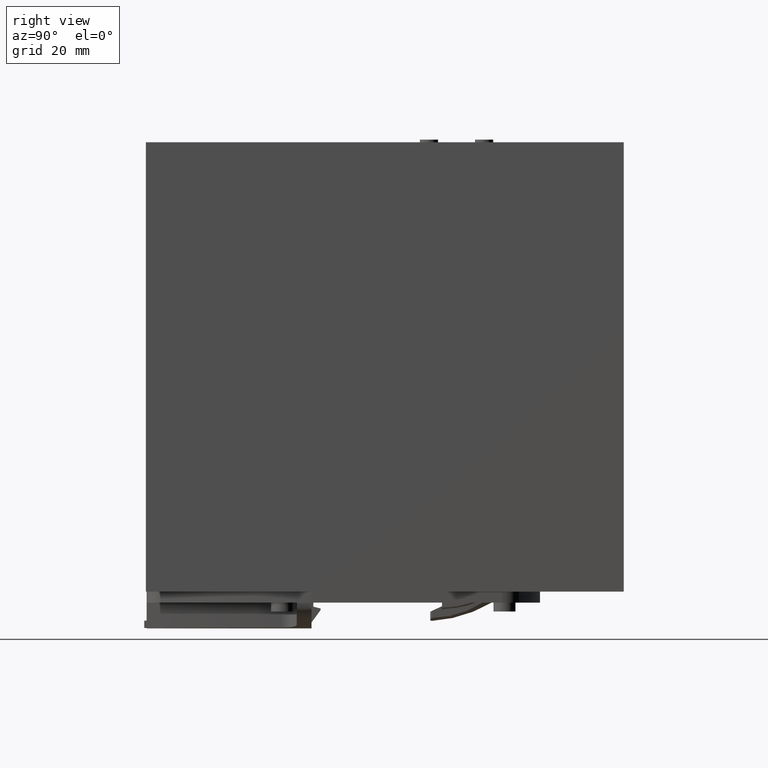
[diagram: clean part render]
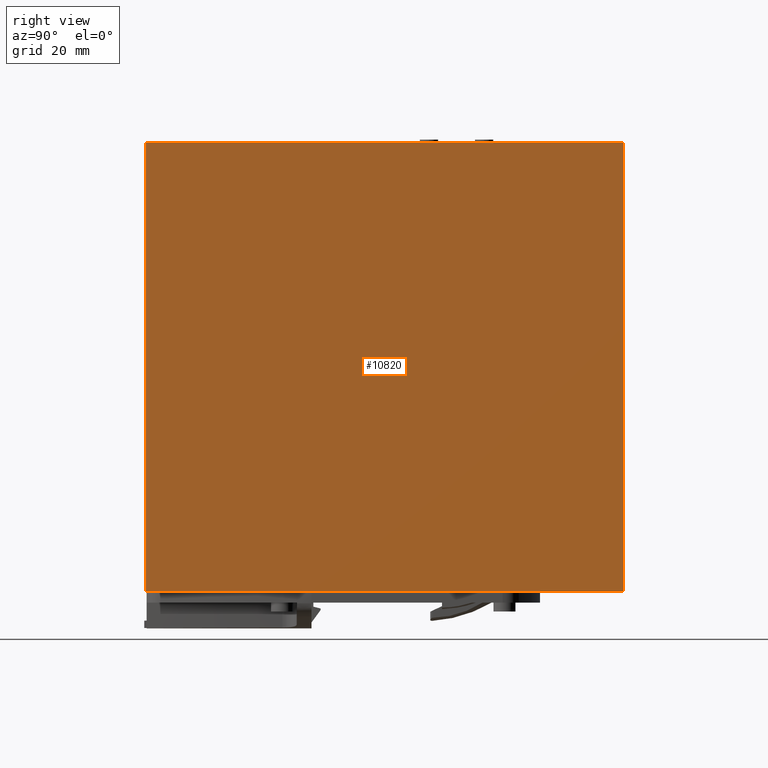
[diagram: same view with one face highlighted and labeled with its STEP entity id]
A machine part, right view. The second image highlights one B-rep face of the part: STEP entity #10820.
In plain terms, the highlighted planar face has unit normal (1, 0, 0).
Its self-contained STEP definition (entity closure, byte-faithful):
#8180=CARTESIAN_POINT('',(70.,122.349999999992,0.));
#8190=DIRECTION('',(0.,0.,-1.));
#8200=VECTOR('',#8190,1.);
#8210=LINE('',#8180,#8200);
#8220=CARTESIAN_POINT('',(70.,122.349999999992,129.146849890801));
#8230=VERTEX_POINT('',#8220);
#8240=CARTESIAN_POINT('',(70.,122.349999999992,-0.853150109198594));
#8250=VERTEX_POINT('',#8240);
#8260=EDGE_CURVE('',#8230,#8250,#8210,.T.);
#10520=CARTESIAN_POINT('',(70.,2.59999999999167,-0.0531501091985831));
#10530=DIRECTION('',(1.,0.,0.));
#10540=DIRECTION('',(0.,1.,0.));
#10550=AXIS2_PLACEMENT_3D('',#10520,#10530,#10540);
#10560=PLANE('',#10550);
#10570=CARTESIAN_POINT('',(70.,0.,129.146849890801));
#10580=DIRECTION('',(0.,1.,0.));
#10590=VECTOR('',#10580,1.);
#10600=LINE('',#10570,#10590);
#10610=CARTESIAN_POINT('',(70.,0.0999999999916668,129.146849890801));
#10620=VERTEX_POINT('',#10610);
#10630=EDGE_CURVE('',#10620,#8230,#10600,.T.);
#10640=ORIENTED_EDGE('',*,*,#10630,.F.);
#10650=ORIENTED_EDGE('',*,*,#8260,.F.);
#10660=CARTESIAN_POINT('',(70.,0.,-0.853150109198594));
#10670=DIRECTION('',(0.,-1.,0.));
#10680=VECTOR('',#10670,1.);
#10690=LINE('',#10660,#10680);
#10700=CARTESIAN_POINT('',(70.,0.0999999999916668,-0.853150109198594));
#10710=VERTEX_POINT('',#10700);
#10720=EDGE_CURVE('',#8250,#10710,#10690,.T.);
#10730=ORIENTED_EDGE('',*,*,#10720,.F.);
#10740=CARTESIAN_POINT('',(70.,0.0999999999916668,0.));
#10750=DIRECTION('',(0.,0.,1.));
#10760=VECTOR('',#10750,1.);
#10770=LINE('',#10740,#10760);
#10780=EDGE_CURVE('',#10710,#10620,#10770,.T.);
#10790=ORIENTED_EDGE('',*,*,#10780,.F.);
#10800=EDGE_LOOP('',(#10790,#10730,#10650,#10640));
#10810=FACE_OUTER_BOUND('',#10800,.T.);
#10820=ADVANCED_FACE('',(#10810),#10560,.T.);